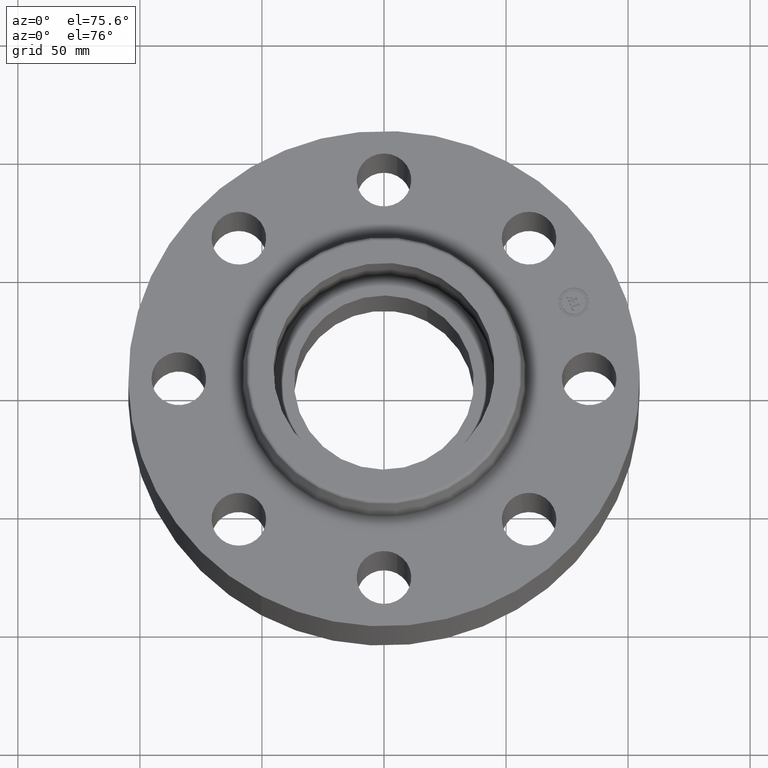
[diagram: clean part render]
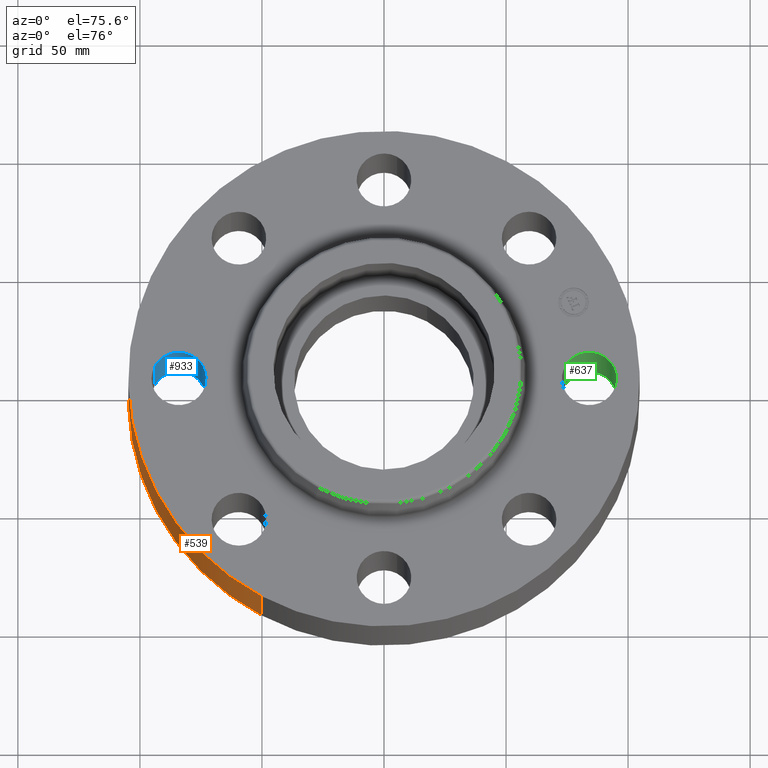
[diagram: same view with three faces highlighted in distinct colors, each labeled with its STEP entity id]
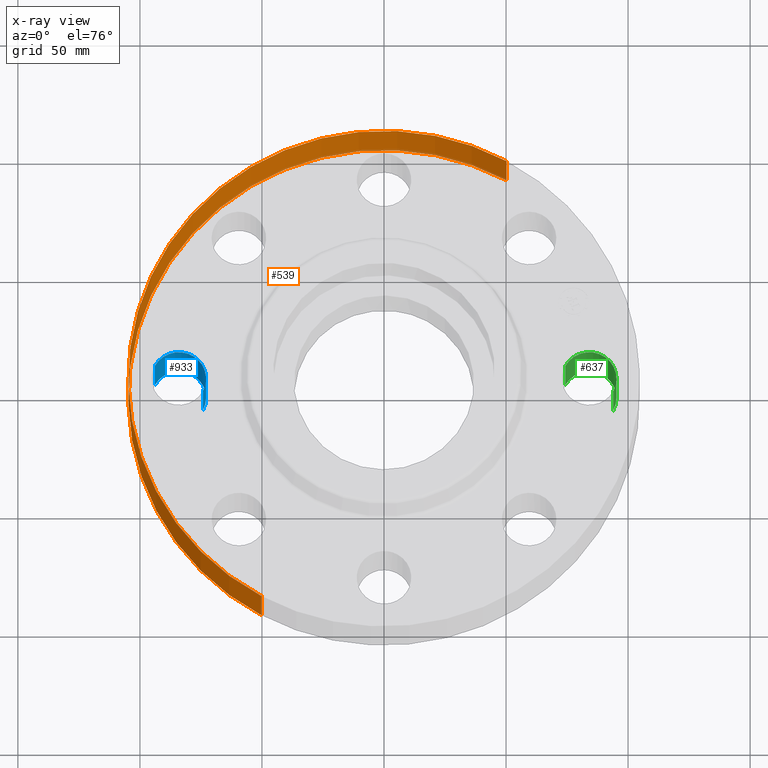
[diagram: x-ray of the same camera — body ghosted, the three highlighted faces saturated]
A machine part, auxiliary view with three faces highlighted in distinct colors.
The next image is the same camera in x-ray (body ghosted, the three faces saturated) — at least one of them is partly hidden behind the body in this view.
Their STEP definitions:

[orange] entity #539 — the highlighted cylindrical surface (partial cylindrical patch) has radius 104.775 mm, axis along (0, 0, -1).
#275=AXIS2_PLACEMENT_3D('Circle Axis2P3D',#273,#274,$) ;
#512=AXIS2_PLACEMENT_3D('Cylinder Axis2P3D',#509,#510,#511) ;
#523=AXIS2_PLACEMENT_3D('Circle Axis2P3D',#521,#522,$) ;
#273=CARTESIAN_POINT('Axis2P3D Location',(1.1189649382E-015,7.0673825497E-012,0.)) ;
#277=CARTESIAN_POINT('Vertex',(-1.97763034678,-3.62002806781,0.)) ;
#279=CARTESIAN_POINT('Vertex',(1.97763034678,3.62002806783,0.)) ;
#509=CARTESIAN_POINT('Axis2P3D Location',(0.,0.,0.905000000004)) ;
#514=CARTESIAN_POINT('Line Origine',(-1.97763034675,-3.62002806781,0.625000000007)) ;
#518=CARTESIAN_POINT('Vertex',(-1.97763034675,-3.62002806781,1.25000000001)) ;
#521=CARTESIAN_POINT('Axis2P3D Location',(0.,0.,1.25000000001)) ;
#525=CARTESIAN_POINT('Vertex',(1.97763034675,3.62002806781,1.25000000001)) ;
#528=CARTESIAN_POINT('Line Origine',(1.97763034675,3.62002806781,0.625000000007)) ;
#274=DIRECTION('Axis2P3D Direction',(0.,0.,-0.0393700787402)) ;
#510=DIRECTION('Axis2P3D Direction',(0.,0.,-0.0393700787402)) ;
#511=DIRECTION('Axis2P3D XDirection',(-0.0188750212049,-0.0345504945626,0.)) ;
#515=DIRECTION('Vector Direction',(0.,0.,-0.0393700787402)) ;
#522=DIRECTION('Axis2P3D Direction',(0.,0.,-0.0393700787402)) ;
#529=DIRECTION('Vector Direction',(0.,0.,-0.0393700787402)) ;
#516=VECTOR('Line Direction',#515,0.0393700787402) ;
#530=VECTOR('Line Direction',#529,0.0393700787402) ;
#534=ORIENTED_EDGE('',*,*,#281,.F.) ;
#535=ORIENTED_EDGE('',*,*,#520,.T.) ;
#536=ORIENTED_EDGE('',*,*,#527,.T.) ;
#537=ORIENTED_EDGE('',*,*,#532,.F.) ;
#539=ADVANCED_FACE('PartBody',(#538),#513,.T.) ;
#276=CIRCLE('generated circle',#275,4.12500000004) ;
#524=CIRCLE('generated circle',#523,4.12500000002) ;
#513=CYLINDRICAL_SURFACE('generated cylinder',#512,4.12500000002) ;
#281=EDGE_CURVE('',#278,#280,#276,.T.) ;
#520=EDGE_CURVE('',#278,#519,#517,.F.) ;
#527=EDGE_CURVE('',#519,#526,#524,.T.) ;
#532=EDGE_CURVE('',#280,#526,#531,.F.) ;
#533=EDGE_LOOP('',(#534,#535,#536,#537)) ;
#538=FACE_OUTER_BOUND('',#533,.T.) ;
#517=LINE('Line',#514,#516) ;
#531=LINE('Line',#528,#530) ;
#278=VERTEX_POINT('',#277) ;
#280=VERTEX_POINT('',#279) ;
#519=VERTEX_POINT('',#518) ;
#526=VERTEX_POINT('',#525) ;

[blue] entity #933 — the highlighted cylindrical surface (edge-blend (fillet) strip) has radius 11.176 mm, axis along (0, -0, -1).
#378=AXIS2_PLACEMENT_3D('Circle Axis2P3D',#376,#377,$) ;
#908=AXIS2_PLACEMENT_3D('Cylinder Axis2P3D',#905,#906,#907) ;
#371=CARTESIAN_POINT('Vertex',(-2.92386367279,-0.210947236992,0.)) ;
#373=CARTESIAN_POINT('Vertex',(-3.69613632721,0.210947237007,0.)) ;
#376=CARTESIAN_POINT('Axis2P3D Location',(-3.30999999999,1.98784121272E-011,0.)) ;
#872=CARTESIAN_POINT('Line Origine',(-2.92386367278,-0.210947236987,0.624999999989)) ;
#876=CARTESIAN_POINT('Vertex',(-2.92386367279,-0.210947236994,1.25000000001)) ;
#879=CARTESIAN_POINT('Line Origine',(-3.69613632724,0.210947236987,0.624999999989)) ;
#883=CARTESIAN_POINT('Vertex',(-3.69613632724,0.210947236987,1.24999999999)) ;
#905=CARTESIAN_POINT('Axis2P3D Location',(-3.31000000001,-4.05358090519E-016,1.24606299213)) ;
#911=CARTESIAN_POINT('Control Point',(-3.69613632724,0.210947236987,1.25000000001)) ;
#912=CARTESIAN_POINT('Control Point',(-3.66300081274,0.271601389433,1.25000000001)) ;
#913=CARTESIAN_POINT('Control Point',(-3.61795588326,0.325749398821,1.25000000001)) ;
#914=CARTESIAN_POINT('Control Point',(-3.5626953225,0.370262840224,1.25000000001)) ;
#915=CARTESIAN_POINT('Control Point',(-3.43769808393,0.435223603166,1.25)) ;
#916=CARTESIAN_POINT('Control Point',(-3.29741808449,0.448097302225,1.25)) ;
#917=CARTESIAN_POINT('Control Point',(-3.22686721097,0.440497941251,1.25)) ;
#918=CARTESIAN_POINT('Control Point',(-3.09254661997,0.398045742217,1.25)) ;
#919=CARTESIAN_POINT('Control Point',(-2.98425060119,0.307955883249,1.25)) ;
#920=CARTESIAN_POINT('Control Point',(-2.93973715979,0.252695322491,1.25)) ;
#921=CARTESIAN_POINT('Control Point',(-2.87477639684,0.127698083922,1.24999999999)) ;
#922=CARTESIAN_POINT('Control Point',(-2.86190269778,-0.0125819155223,1.24999999999)) ;
#923=CARTESIAN_POINT('Control Point',(-2.86950205876,-0.0831327890369,1.24999999999)) ;
#924=CARTESIAN_POINT('Control Point',(-2.89072815828,-0.150293084541,1.24999999999)) ;
#925=CARTESIAN_POINT('Control Point',(-2.92386367278,-0.210947236987,1.24999999999)) ;
#377=DIRECTION('Axis2P3D Direction',(0.,0.,-0.0393700787402)) ;
#873=DIRECTION('Vector Direction',(0.,0.,-0.0393700787402)) ;
#880=DIRECTION('Vector Direction',(0.,0.,-0.0393700787402)) ;
#906=DIRECTION('Axis2P3D Direction',(0.,-0.,-0.0393700787402)) ;
#907=DIRECTION('Axis2P3D XDirection',(-0.0345504945626,0.0188750212049,0.)) ;
#874=VECTOR('Line Direction',#873,0.0393700787402) ;
#881=VECTOR('Line Direction',#880,0.0393700787402) ;
#928=ORIENTED_EDGE('',*,*,#885,.F.) ;
#929=ORIENTED_EDGE('',*,*,#380,.T.) ;
#930=ORIENTED_EDGE('',*,*,#878,.T.) ;
#931=ORIENTED_EDGE('',*,*,#926,.F.) ;
#933=ADVANCED_FACE('PartBody',(#932),#909,.F.) ;
#910=B_SPLINE_CURVE_WITH_KNOTS('',5,(#911,#912,#913,#914,#915,#916,#917,#918,#919,#920,#921,#922,#923,#924,#925),.UNSPECIFIED.,.F.,.U.,(6,3,3,3,6),(-17.5552197483,-8.77760987417,0.,8.77760987417,17.5552197483),.UNSPECIFIED.) ;
#379=CIRCLE('generated circle',#378,0.439999999988) ;
#909=CYLINDRICAL_SURFACE('generated cylinder',#908,0.440000000002) ;
#380=EDGE_CURVE('',#374,#372,#379,.T.) ;
#878=EDGE_CURVE('',#372,#877,#875,.F.) ;
#885=EDGE_CURVE('',#374,#884,#882,.F.) ;
#926=EDGE_CURVE('',#884,#877,#910,.T.) ;
#927=EDGE_LOOP('',(#928,#929,#930,#931)) ;
#932=FACE_OUTER_BOUND('',#927,.T.) ;
#875=LINE('Line',#872,#874) ;
#882=LINE('Line',#879,#881) ;
#372=VERTEX_POINT('',#371) ;
#374=VERTEX_POINT('',#373) ;
#877=VERTEX_POINT('',#876) ;
#884=VERTEX_POINT('',#883) ;

[green] entity #637 — the highlighted cylindrical surface (edge-blend (fillet) strip) has radius 11.176 mm, axis along (0, -0, -1).
#302=AXIS2_PLACEMENT_3D('Circle Axis2P3D',#300,#301,$) ;
#624=AXIS2_PLACEMENT_3D('Cylinder Axis2P3D',#621,#622,#623) ;
#628=AXIS2_PLACEMENT_3D('Circle Axis2P3D',#626,#627,$) ;
#295=CARTESIAN_POINT('Vertex',(3.69613632721,-0.210947236992,0.)) ;
#297=CARTESIAN_POINT('Vertex',(2.92386367279,0.210947237007,0.)) ;
#300=CARTESIAN_POINT('Axis2P3D Location',(3.31000000001,1.98784121272E-011,0.)) ;
#576=CARTESIAN_POINT('Line Origine',(3.69613632724,-0.210947236987,0.625)) ;
#580=CARTESIAN_POINT('Vertex',(3.69613632724,-0.210947236984,1.24999999999)) ;
#583=CARTESIAN_POINT('Line Origine',(2.92386367278,0.210947236987,0.625)) ;
#587=CARTESIAN_POINT('Vertex',(2.92386367278,0.210947236987,1.24999999999)) ;
#621=CARTESIAN_POINT('Axis2P3D Location',(3.31000000001,0.,1.24606299213)) ;
#626=CARTESIAN_POINT('Axis2P3D Location',(3.31000000001,0.,1.24999999999)) ;
#301=DIRECTION('Axis2P3D Direction',(0.,0.,-0.0393700787402)) ;
#577=DIRECTION('Vector Direction',(0.,0.,-0.0393700787402)) ;
#584=DIRECTION('Vector Direction',(0.,0.,-0.0393700787402)) ;
#622=DIRECTION('Axis2P3D Direction',(0.,-0.,-0.0393700787402)) ;
#623=DIRECTION('Axis2P3D XDirection',(-0.0345504945626,0.0188750212049,0.)) ;
#627=DIRECTION('Axis2P3D Direction',(0.,-0.,-0.0393700787402)) ;
#578=VECTOR('Line Direction',#577,0.0393700787402) ;
#585=VECTOR('Line Direction',#584,0.0393700787402) ;
#632=ORIENTED_EDGE('',*,*,#589,.F.) ;
#633=ORIENTED_EDGE('',*,*,#304,.T.) ;
#634=ORIENTED_EDGE('',*,*,#582,.T.) ;
#635=ORIENTED_EDGE('',*,*,#630,.F.) ;
#637=ADVANCED_FACE('PartBody',(#636),#625,.F.) ;
#303=CIRCLE('generated circle',#302,0.439999999988) ;
#629=CIRCLE('generated circle',#628,0.440000000002) ;
#625=CYLINDRICAL_SURFACE('generated cylinder',#624,0.440000000002) ;
#304=EDGE_CURVE('',#298,#296,#303,.T.) ;
#582=EDGE_CURVE('',#296,#581,#579,.F.) ;
#589=EDGE_CURVE('',#298,#588,#586,.F.) ;
#630=EDGE_CURVE('',#588,#581,#629,.T.) ;
#631=EDGE_LOOP('',(#632,#633,#634,#635)) ;
#636=FACE_OUTER_BOUND('',#631,.T.) ;
#579=LINE('Line',#576,#578) ;
#586=LINE('Line',#583,#585) ;
#296=VERTEX_POINT('',#295) ;
#298=VERTEX_POINT('',#297) ;
#581=VERTEX_POINT('',#580) ;
#588=VERTEX_POINT('',#587) ;